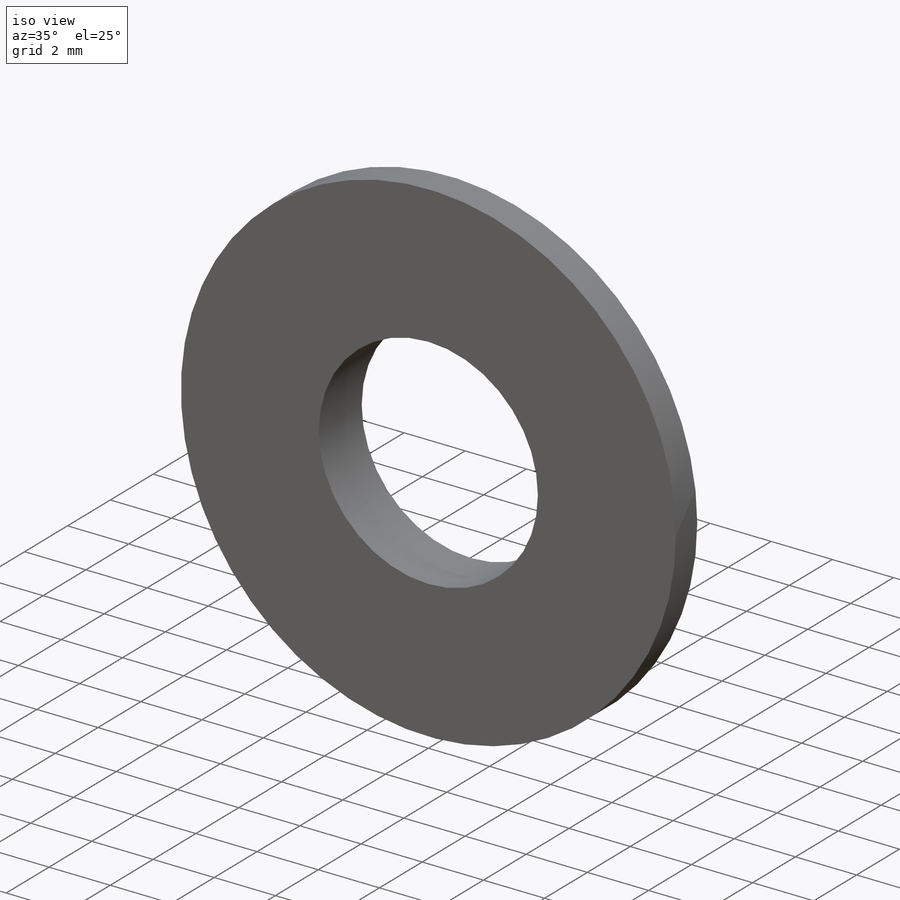
[diagram: iso view]
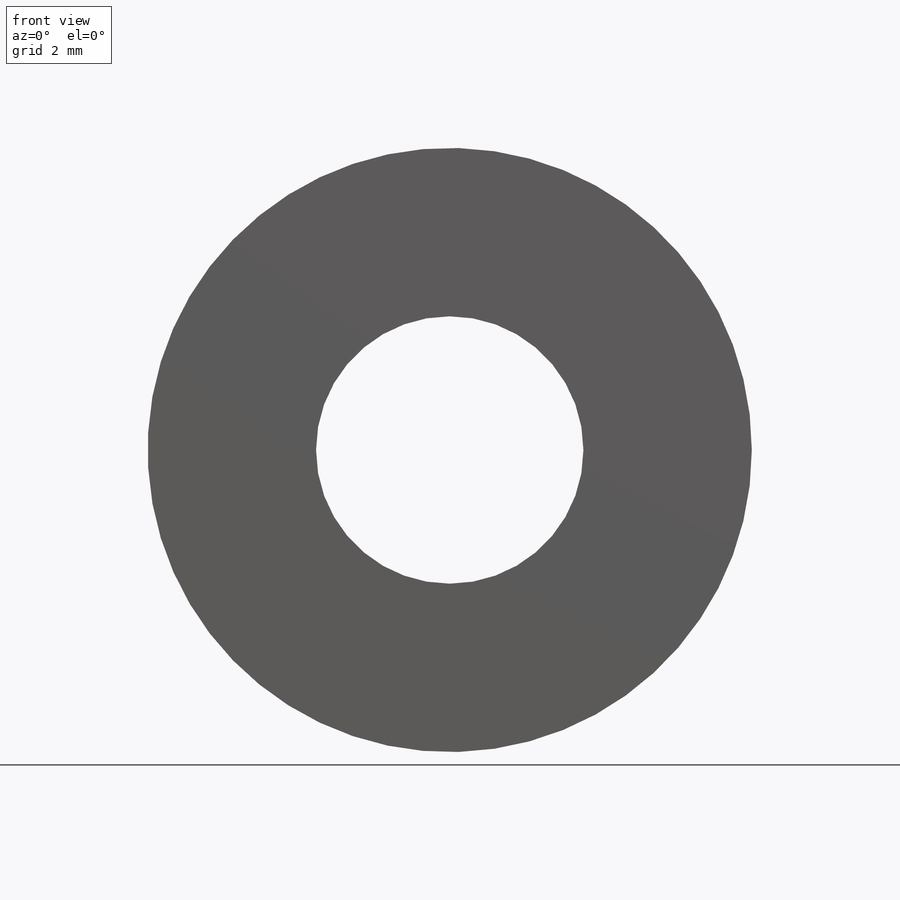
[diagram: front view]
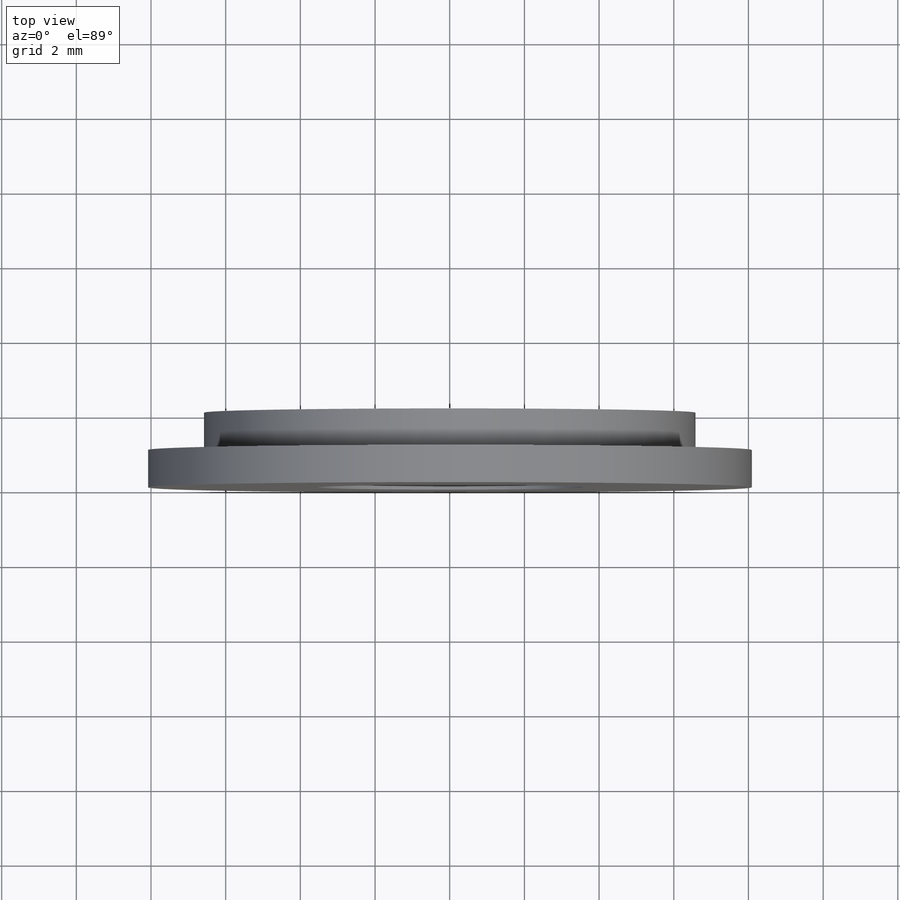
[diagram: top view]
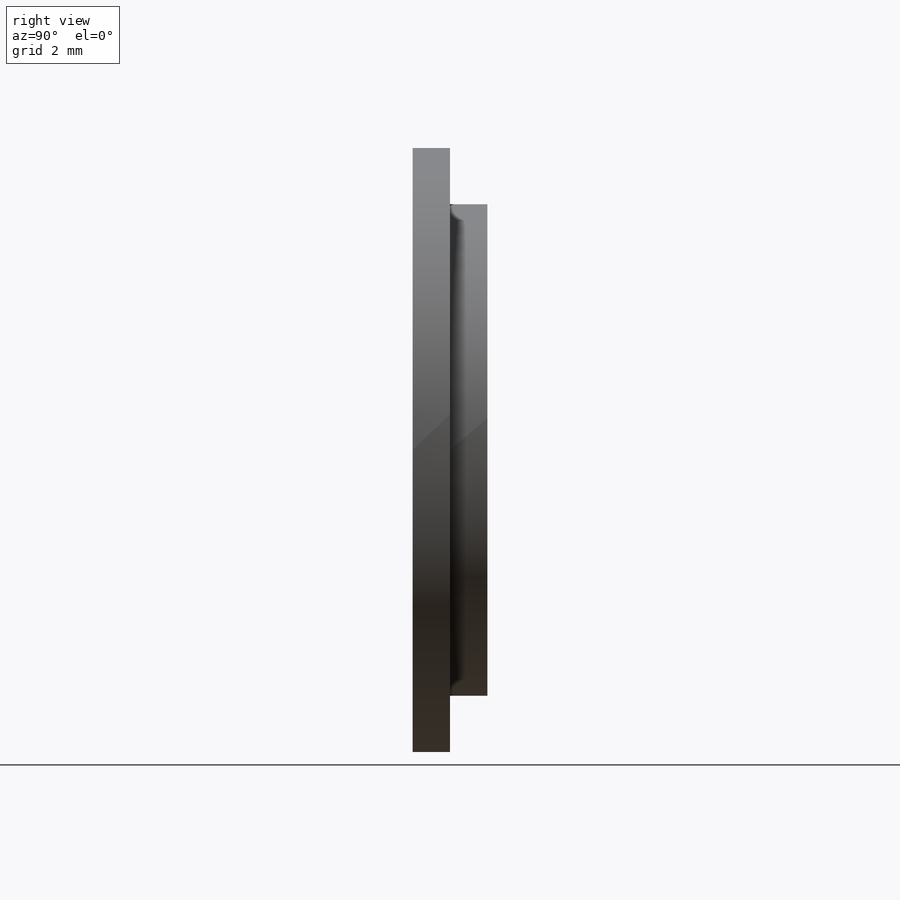
[diagram: right view]
SOLIDWORKS PART (.sldprt)
format: sldprt  version: not decoded by parser v0  size: 318,976 bytes
history: native  units: mm
features: sketch x4, thread x2, material x1, revolve x1, hole x1, extrude x1, chamfer x1 (+15 scaffold rows collapsed)
feature tree (26):
  scaffold x15  (default folders/planes/origin — collapsed)
  material  "AISI 1020"
  sketch  "Sketch1"  dims[D1=8.09mm D2=1.0mm D3=6.58mm D4=1.25mm D5=3.0mm D6=3.58mm]
  revolve  "Revolve1"  Angle=360deg
  hole  "M6x1.0 Tapped Hole1"  Diameter=5mm Depth=15mm
  sketch  "3DSketch1"
  sketch  "Sketch2"  dims[hole-wizard template sketch: 47 standard entries collapsed; hole parameters kept: c15.Tap Drill Depth=15.0mm c15.D3=~14.816244mm c15.Drill Angle=118.0deg]
  thread  "Hole Thread1"  Diameter=2.25mm  [1 undecoded]
  thread  "Hole Thread2"  Diameter=2.25mm  [1 undecoded]
  sketch  "Sketch3"  dims[c1.D1=2.0mm c1.D2=4.5mm c1.D3=~5.14908mm c2.D3=60.0deg]
  extrude  "Extrude1"  Depth=1mm
  chamfer  "Chamfer1"  Distance=0.25mm Angle=45deg
decode coverage: 9 of 10 modeling features carry decoded parameters
note: ~ marks probable driven/reference dimensions
note: 2 parameter values undecoded
note: suppression state not decoded; provenance and decode notes live in map.json
